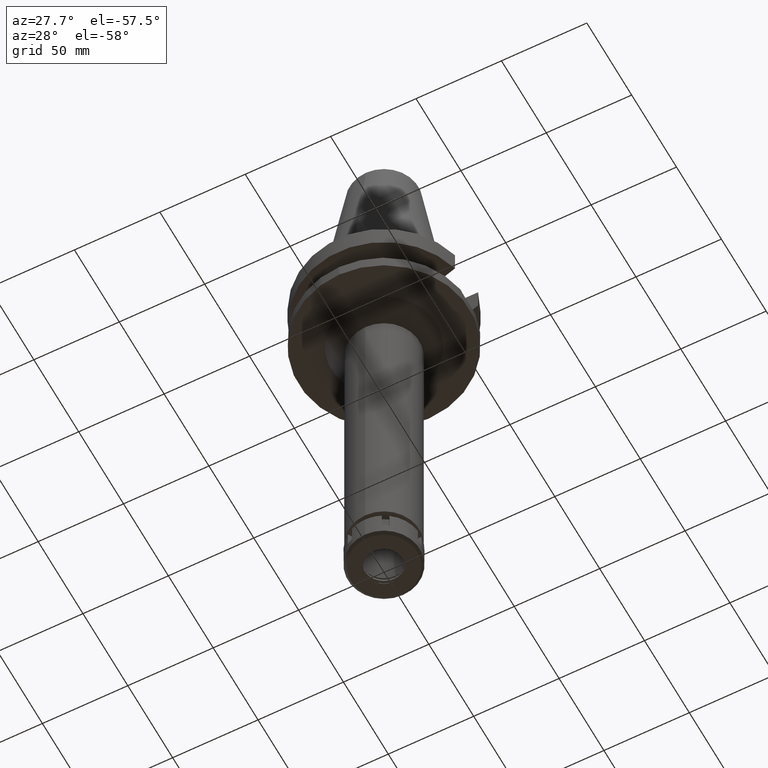
[diagram: clean part render]
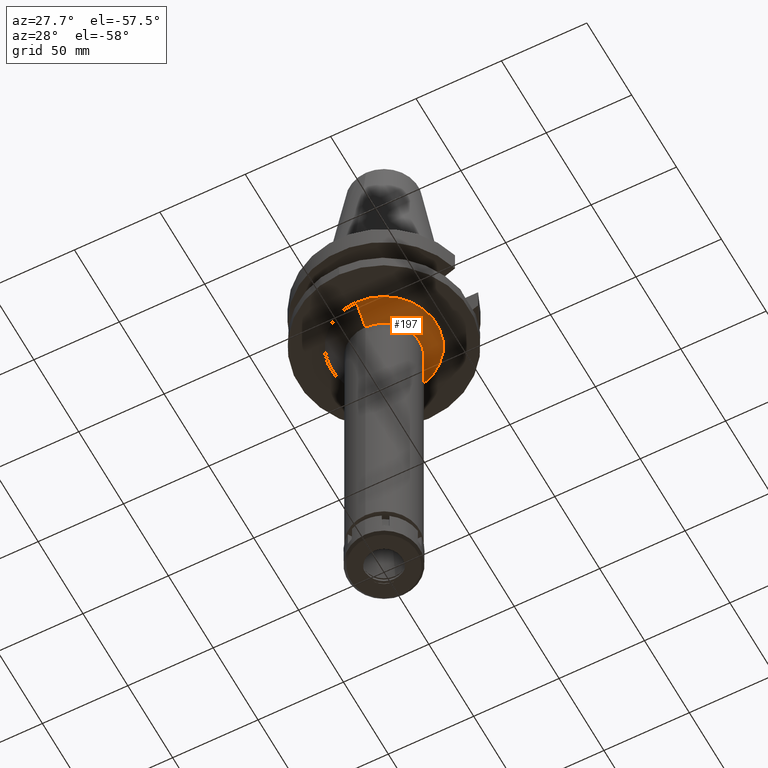
[diagram: same view with one face highlighted and labeled with its STEP entity id]
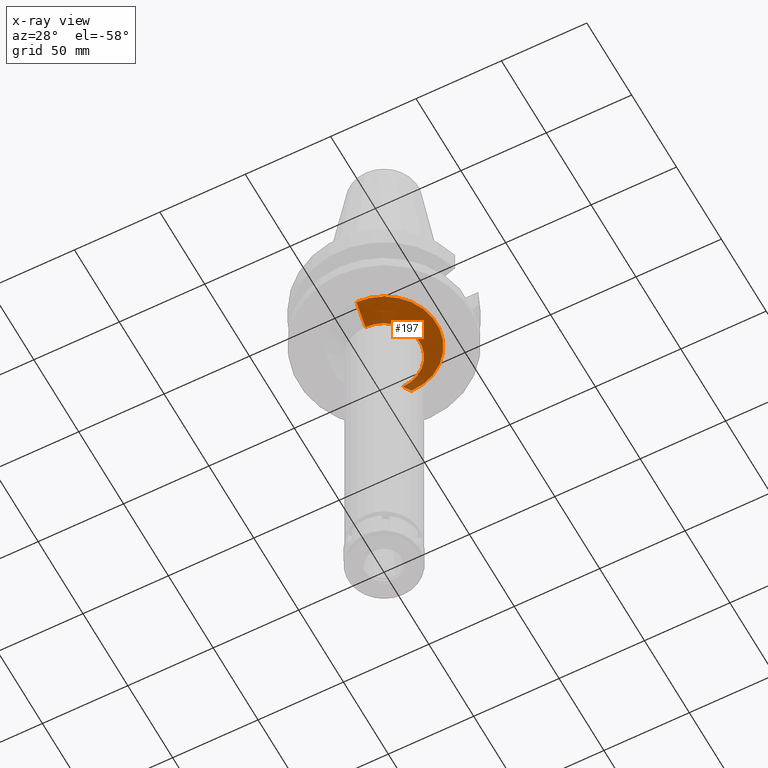
[diagram: x-ray of the same camera — body ghosted, the highlighted face saturated]
A machine part, auxiliary view. The second image highlights one B-rep face of the part: STEP entity #197.
The next image is the same camera in x-ray: the body ghosted, the highlighted face saturated — about 6% of this face is hidden behind the body in this view.
In plain terms, the highlighted conical surface has half-angle 45 deg.
Its self-contained STEP definition (entity closure, byte-faithful):
#38 = CONICAL_SURFACE ( 'NONE', #1686, 25.75000000000000000, 0.7853981633972997312 ) ;
#197 = ADVANCED_FACE ( 'NONE', ( #302 ), #38, .T. ) ;
#302 = FACE_OUTER_BOUND ( 'NONE', #2012, .T. ) ;
#341 = AXIS2_PLACEMENT_3D ( 'NONE', #2353, #685, #3458 ) ;
#354 = CARTESIAN_POINT ( 'NONE',  ( 0.0000000000000000000, 0.0000000000000000000, -43.00000000000000000 ) ) ;
#365 = EDGE_CURVE ( 'NONE', #1680, #2084, #741, .T. ) ;
#434 = CARTESIAN_POINT ( 'NONE',  ( 0.0000000000000000000, -30.75000000000000000, -38.00000000000000000 ) ) ;
#528 = ORIENTED_EDGE ( 'NONE', *, *, #365, .T. ) ;
#685 = DIRECTION ( 'NONE',  ( 0.0000000000000000000, 0.0000000000000000000, -1.000000000000000000 ) ) ;
#687 = CIRCLE ( 'NONE', #341, 20.75000000000000000 ) ;
#735 = CARTESIAN_POINT ( 'NONE',  ( 0.0000000000000000000, 20.75000000000000000, -48.00000000000000000 ) ) ;
#741 = CIRCLE ( 'NONE', #2830, 30.75000000000000000 ) ;
#743 = CARTESIAN_POINT ( 'NONE',  ( 0.0000000000000000000, 30.75000000000000000, -38.00000000000000000 ) ) ;
#879 = DIRECTION ( 'NONE',  ( 0.0000000000000000000, 0.0000000000000000000, 1.000000000000000000 ) ) ;
#929 = CARTESIAN_POINT ( 'NONE',  ( 0.0000000000000000000, -30.75000000000000000, -38.00000000000000000 ) ) ;
#1252 = VERTEX_POINT ( 'NONE', #735 ) ;
#1300 = DIRECTION ( 'NONE',  ( 0.0000000000000000000, 0.0000000000000000000, -1.000000000000000000 ) ) ;
#1542 = DIRECTION ( 'NONE',  ( 0.0000000000000000000, 1.000000000000000000, 0.0000000000000000000 ) ) ;
#1562 = DIRECTION ( 'NONE',  ( 0.0000000000000000000, 0.7071067811865969777, -0.7071067811864980568 ) ) ;
#1638 = DIRECTION ( 'NONE',  ( 0.0000000000000000000, -0.7071067811865474617, -0.7071067811865474617 ) ) ;
#1669 = ORIENTED_EDGE ( 'NONE', *, *, #3451, .F. ) ;
#1676 = ORIENTED_EDGE ( 'NONE', *, *, #3285, .T. ) ;
#1680 = VERTEX_POINT ( 'NONE', #743 ) ;
#1686 = AXIS2_PLACEMENT_3D ( 'NONE', #354, #879, #2568 ) ;
#1993 = LINE ( 'NONE', #2211, #2847 ) ;
#2012 = EDGE_LOOP ( 'NONE', ( #528, #1676, #2878, #1669 ) ) ;
#2084 = VERTEX_POINT ( 'NONE', #929 ) ;
#2211 = CARTESIAN_POINT ( 'NONE',  ( 0.0000000000000000000, 30.75000000000000000, -38.00000000000000000 ) ) ;
#2323 = VECTOR ( 'NONE', #1562, 1000.000000000000000 ) ;
#2353 = CARTESIAN_POINT ( 'NONE',  ( 0.0000000000000000000, 0.0000000000000000000, -48.00000000000000000 ) ) ;
#2422 = EDGE_CURVE ( 'NONE', #1252, #3325, #687, .T. ) ;
#2568 = DIRECTION ( 'NONE',  ( 0.0000000000000000000, 1.000000000000000000, 0.0000000000000000000 ) ) ;
#2830 = AXIS2_PLACEMENT_3D ( 'NONE', #3213, #1300, #1542 ) ;
#2847 = VECTOR ( 'NONE', #1638, 1000.000000000000114 ) ;
#2878 = ORIENTED_EDGE ( 'NONE', *, *, #2422, .F. ) ;
#2911 = LINE ( 'NONE', #434, #2323 ) ;
#3213 = CARTESIAN_POINT ( 'NONE',  ( 0.0000000000000000000, 0.0000000000000000000, -38.00000000000000000 ) ) ;
#3285 = EDGE_CURVE ( 'NONE', #2084, #3325, #2911, .T. ) ;
#3325 = VERTEX_POINT ( 'NONE', #3557 ) ;
#3451 = EDGE_CURVE ( 'NONE', #1680, #1252, #1993, .T. ) ;
#3458 = DIRECTION ( 'NONE',  ( 0.0000000000000000000, 1.000000000000000000, 0.0000000000000000000 ) ) ;
#3557 = CARTESIAN_POINT ( 'NONE',  ( 0.0000000000000000000, -20.75000000000000000, -48.00000000000000000 ) ) ;